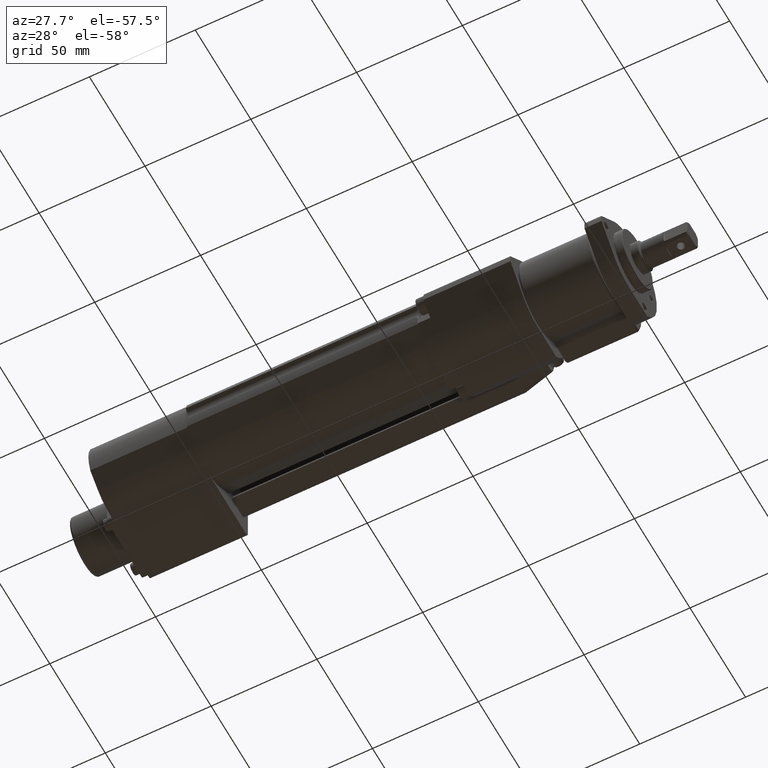
[diagram: clean part render]
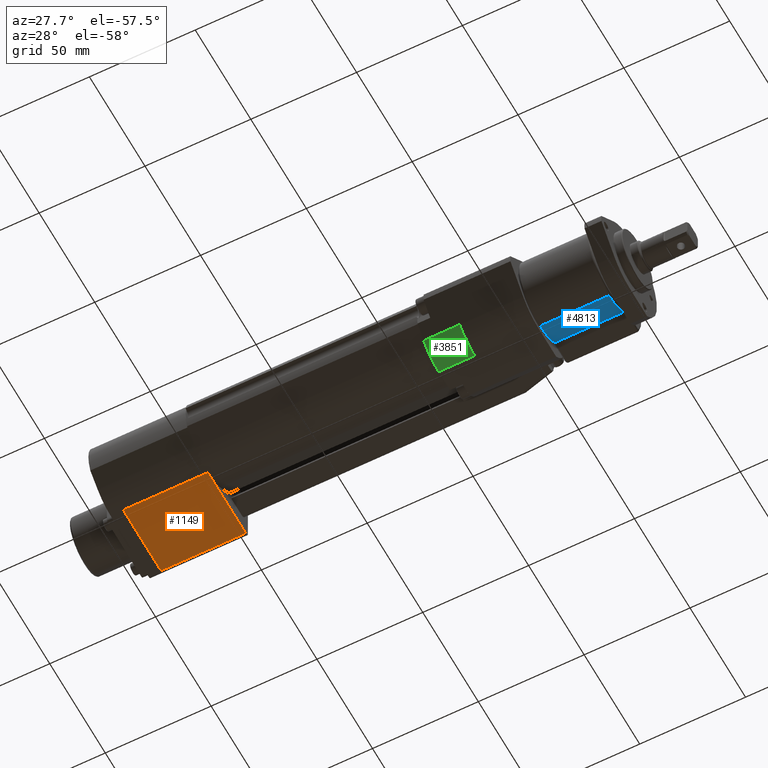
[diagram: same view with three faces highlighted in distinct colors, each labeled with its STEP entity id]
A machine part, auxiliary view with three faces highlighted in distinct colors.
Their STEP definitions:

[orange] entity #1149 — the highlighted planar face has unit normal (0, 0, 1).
#7 = DIRECTION ( 'NONE',  ( 0.0000000000000000000, -1.000000000000000000, 9.637352644315597700E-017 ) ) ;
#166 = CARTESIAN_POINT ( 'NONE',  ( -239.0000000000000300, 36.00000000000000000, -18.00000000000001100 ) ) ;
#334 = DIRECTION ( 'NONE',  ( 0.0000000000000000000, -1.000000000000000000, 9.637352644315597700E-017 ) ) ;
#586 = VECTOR ( 'NONE', #8657, 1000.000000000000000 ) ;
#904 = DIRECTION ( 'NONE',  ( 0.0000000000000000000, -1.000000000000000000, 9.637352644315597700E-017 ) ) ;
#1002 = LINE ( 'NONE', #8552, #5198 ) ;
#1059 = LINE ( 'NONE', #8693, #586 ) ;
#1149 = ADVANCED_FACE ( 'NONE', ( #8140 ), #5508, .F. ) ;
#1251 = EDGE_CURVE ( 'NONE', #1383, #1437, #7692, .T. ) ;
#1383 = VERTEX_POINT ( 'NONE', #4345 ) ;
#1433 = CARTESIAN_POINT ( 'NONE',  ( -239.0000000000000300, 1.019797001576636400E-014, -18.00000000000000400 ) ) ;
#1437 = VERTEX_POINT ( 'NONE', #1433 ) ;
#1499 = CARTESIAN_POINT ( 'NONE',  ( -199.0000000000000000, 33.99999999999999300, -18.00000000000001100 ) ) ;
#1571 = CARTESIAN_POINT ( 'NONE',  ( -199.0000000000000000, 1.019797001576636400E-014, -18.00000000000000400 ) ) ;
#1574 = LINE ( 'NONE', #4501, #9306 ) ;
#1738 = VECTOR ( 'NONE', #904, 1000.000000000000000 ) ;
#2209 = VERTEX_POINT ( 'NONE', #1499 ) ;
#2741 = EDGE_CURVE ( 'NONE', #1383, #2209, #1002, .T. ) ;
#3361 = EDGE_CURVE ( 'NONE', #2209, #4240, #1574, .T. ) ;
#4240 = VERTEX_POINT ( 'NONE', #1571 ) ;
#4345 = CARTESIAN_POINT ( 'NONE',  ( -239.0000000000000300, 33.99999999999999300, -18.00000000000001100 ) ) ;
#4501 = CARTESIAN_POINT ( 'NONE',  ( -199.0000000000000000, 36.00000000000000000, -18.00000000000001100 ) ) ;
#4819 = DIRECTION ( 'NONE',  ( 0.0000000000000000000, 9.637352644315597700E-017, 1.000000000000000000 ) ) ;
#5198 = VECTOR ( 'NONE', #9324, 1000.000000000000000 ) ;
#5508 = PLANE ( 'NONE',  #7308 ) ;
#5582 = EDGE_LOOP ( 'NONE', ( #7578, #9037, #8270, #6561 ) ) ;
#6500 = EDGE_CURVE ( 'NONE', #1437, #4240, #1059, .T. ) ;
#6561 = ORIENTED_EDGE ( 'NONE', *, *, #6500, .F. ) ;
#7308 = AXIS2_PLACEMENT_3D ( 'NONE', #9292, #4819, #334 ) ;
#7578 = ORIENTED_EDGE ( 'NONE', *, *, #1251, .F. ) ;
#7692 = LINE ( 'NONE', #166, #1738 ) ;
#8140 = FACE_OUTER_BOUND ( 'NONE', #5582, .T. ) ;
#8270 = ORIENTED_EDGE ( 'NONE', *, *, #3361, .T. ) ;
#8552 = CARTESIAN_POINT ( 'NONE',  ( -239.0000000000000300, 33.99999999999999300, -18.00000000000001100 ) ) ;
#8657 = DIRECTION ( 'NONE',  ( 1.000000000000000000, -0.0000000000000000000, -0.0000000000000000000 ) ) ;
#8693 = CARTESIAN_POINT ( 'NONE',  ( -239.0000000000000300, 1.019797001576636400E-014, -18.00000000000000400 ) ) ;
#9037 = ORIENTED_EDGE ( 'NONE', *, *, #2741, .T. ) ;
#9292 = CARTESIAN_POINT ( 'NONE',  ( -239.0000000000000300, 36.00000000000000000, -18.00000000000001100 ) ) ;
#9306 = VECTOR ( 'NONE', #7, 1000.000000000000000 ) ;
#9324 = DIRECTION ( 'NONE',  ( 1.000000000000000000, 0.0000000000000000000, -0.0000000000000000000 ) ) ;

[blue] entity #4813 — the highlighted cylindrical surface (partial cylindrical patch) has radius 18.5 mm, axis along (1, -0, -0).
#10 = CARTESIAN_POINT ( 'NONE',  ( -9.500000000000001800, 0.0000000000000000000, 0.0000000000000000000 ) ) ;
#185 = CARTESIAN_POINT ( 'NONE',  ( -9.500000000000001800, 0.0000000000000000000, -18.49999999999999600 ) ) ;
#764 = DIRECTION ( 'NONE',  ( 0.0000000000000000000, 0.0000000000000000000, 1.000000000000000000 ) ) ;
#1128 = CIRCLE ( 'NONE', #8905, 18.49999999999999600 ) ;
#1710 = CARTESIAN_POINT ( 'NONE',  ( -43.00000000000000000, 0.0000000000000000000, -18.49999999999999600 ) ) ;
#1891 = ORIENTED_EDGE ( 'NONE', *, *, #7987, .T. ) ;
#1911 = DIRECTION ( 'NONE',  ( 1.000000000000000000, -0.0000000000000000000, -0.0000000000000000000 ) ) ;
#1973 = EDGE_CURVE ( 'NONE', #4396, #3317, #9550, .T. ) ;
#2810 = CARTESIAN_POINT ( 'NONE',  ( -42.00000000000000000, 0.0000000000000000000, 0.0000000000000000000 ) ) ;
#3304 = EDGE_LOOP ( 'NONE', ( #6775, #8776, #9174, #1891 ) ) ;
#3317 = VERTEX_POINT ( 'NONE', #7438 ) ;
#3550 = DIRECTION ( 'NONE',  ( 0.0000000000000000000, 0.0000000000000000000, 1.000000000000000000 ) ) ;
#3580 = VECTOR ( 'NONE', #5712, 1000.000000000000000 ) ;
#3895 = AXIS2_PLACEMENT_3D ( 'NONE', #2810, #8024, #3550 ) ;
#3915 = EDGE_CURVE ( 'NONE', #7582, #6545, #6815, .T. ) ;
#4396 = VERTEX_POINT ( 'NONE', #8450 ) ;
#4505 = CIRCLE ( 'NONE', #3895, 18.49999999999999600 ) ;
#4727 = CYLINDRICAL_SURFACE ( 'NONE', #5662, 18.49999999999999600 ) ;
#4813 = ADVANCED_FACE ( 'NONE', ( #4969 ), #4727, .T. ) ;
#4969 = FACE_OUTER_BOUND ( 'NONE', #3304, .T. ) ;
#5233 = DIRECTION ( 'NONE',  ( -1.000000000000000000, 0.0000000000000000000, 0.0000000000000000000 ) ) ;
#5529 = VECTOR ( 'NONE', #7647, 1000.000000000000000 ) ;
#5662 = AXIS2_PLACEMENT_3D ( 'NONE', #6385, #1911, #7136 ) ;
#5712 = DIRECTION ( 'NONE',  ( 1.000000000000000000, -0.0000000000000000000, -0.0000000000000000000 ) ) ;
#6385 = CARTESIAN_POINT ( 'NONE',  ( -43.00000000000000000, 0.0000000000000000000, 0.0000000000000000000 ) ) ;
#6484 = CARTESIAN_POINT ( 'NONE',  ( -43.00000000000000000, 13.25572037069669700, -12.90487804878048900 ) ) ;
#6545 = VERTEX_POINT ( 'NONE', #185 ) ;
#6775 = ORIENTED_EDGE ( 'NONE', *, *, #3915, .F. ) ;
#6815 = LINE ( 'NONE', #1710, #5529 ) ;
#7065 = CARTESIAN_POINT ( 'NONE',  ( -42.00000000000000000, 0.0000000000000000000, -18.49999999999999600 ) ) ;
#7136 = DIRECTION ( 'NONE',  ( 0.0000000000000000000, 0.0000000000000000000, -1.000000000000000000 ) ) ;
#7438 = CARTESIAN_POINT ( 'NONE',  ( -9.500000000000001800, 13.25572037069669700, -12.90487804878048900 ) ) ;
#7582 = VERTEX_POINT ( 'NONE', #7065 ) ;
#7647 = DIRECTION ( 'NONE',  ( 1.000000000000000000, -0.0000000000000000000, -0.0000000000000000000 ) ) ;
#7830 = EDGE_CURVE ( 'NONE', #7582, #4396, #4505, .T. ) ;
#7987 = EDGE_CURVE ( 'NONE', #3317, #6545, #1128, .T. ) ;
#8024 = DIRECTION ( 'NONE',  ( 1.000000000000000000, -0.0000000000000000000, -0.0000000000000000000 ) ) ;
#8450 = CARTESIAN_POINT ( 'NONE',  ( -42.00000000000000000, 13.25572037069669700, -12.90487804878048900 ) ) ;
#8776 = ORIENTED_EDGE ( 'NONE', *, *, #7830, .T. ) ;
#8905 = AXIS2_PLACEMENT_3D ( 'NONE', #10, #5233, #764 ) ;
#9174 = ORIENTED_EDGE ( 'NONE', *, *, #1973, .T. ) ;
#9550 = LINE ( 'NONE', #6484, #3580 ) ;

[green] entity #3851 — the highlighted cylindrical surface (partial cylindrical patch) has radius 19 mm, axis along (1, -0, -0).
#103 = LINE ( 'NONE', #3940, #8054 ) ;
#398 = DIRECTION ( 'NONE',  ( 0.0000000000000000000, 0.0000000000000000000, 1.000000000000000000 ) ) ;
#414 = AXIS2_PLACEMENT_3D ( 'NONE', #9351, #4891, #398 ) ;
#1106 = CYLINDRICAL_SURFACE ( 'NONE', #6980, 19.00000000000000400 ) ;
#1289 = ORIENTED_EDGE ( 'NONE', *, *, #8424, .T. ) ;
#1330 = ORIENTED_EDGE ( 'NONE', *, *, #4433, .T. ) ;
#1347 = VERTEX_POINT ( 'NONE', #9348 ) ;
#1360 = VERTEX_POINT ( 'NONE', #3548 ) ;
#1772 = CARTESIAN_POINT ( 'NONE',  ( -90.00000000000001400, -2.664389077618542200E-015, -19.00000000000000000 ) ) ;
#2506 = DIRECTION ( 'NONE',  ( -1.000000000000000000, 0.0000000000000000000, 0.0000000000000000000 ) ) ;
#2554 = DIRECTION ( 'NONE',  ( 1.000000000000000000, -0.0000000000000000000, -0.0000000000000000000 ) ) ;
#2756 = ORIENTED_EDGE ( 'NONE', *, *, #6570, .F. ) ;
#3318 = FACE_OUTER_BOUND ( 'NONE', #5297, .T. ) ;
#3432 = VERTEX_POINT ( 'NONE', #5299 ) ;
#3548 = CARTESIAN_POINT ( 'NONE',  ( -90.00000000000001400, -13.43502884254452900, -13.43502884254428100 ) ) ;
#3639 = CIRCLE ( 'NONE', #414, 19.00000000000000400 ) ;
#3759 = CARTESIAN_POINT ( 'NONE',  ( -73.00000000000001400, -2.664389077618542200E-015, -19.00000000000000000 ) ) ;
#3851 = ADVANCED_FACE ( 'NONE', ( #3318 ), #1106, .T. ) ;
#3940 = CARTESIAN_POINT ( 'NONE',  ( -90.00000000000001400, -13.43502884254452900, -13.43502884254428100 ) ) ;
#4137 = LINE ( 'NONE', #1772, #5854 ) ;
#4433 = EDGE_CURVE ( 'NONE', #3432, #5342, #4137, .T. ) ;
#4497 = EDGE_CURVE ( 'NONE', #3432, #1360, #3639, .T. ) ;
#4613 = CARTESIAN_POINT ( 'NONE',  ( -90.00000000000001400, 0.0000000000000000000, 0.0000000000000000000 ) ) ;
#4696 = ORIENTED_EDGE ( 'NONE', *, *, #4497, .F. ) ;
#4891 = DIRECTION ( 'NONE',  ( -1.000000000000000000, 0.0000000000000000000, 0.0000000000000000000 ) ) ;
#5297 = EDGE_LOOP ( 'NONE', ( #1289, #2756, #4696, #1330 ) ) ;
#5299 = CARTESIAN_POINT ( 'NONE',  ( -90.00000000000001400, -2.664389077618542200E-015, -19.00000000000000000 ) ) ;
#5342 = VERTEX_POINT ( 'NONE', #3759 ) ;
#5435 = DIRECTION ( 'NONE',  ( 1.000000000000000000, -0.0000000000000000000, -0.0000000000000000000 ) ) ;
#5775 = CIRCLE ( 'NONE', #6540, 19.00000000000000400 ) ;
#5854 = VECTOR ( 'NONE', #2554, 1000.000000000000000 ) ;
#6101 = DIRECTION ( 'NONE',  ( 1.000000000000000000, -0.0000000000000000000, -0.0000000000000000000 ) ) ;
#6540 = AXIS2_PLACEMENT_3D ( 'NONE', #6983, #2506, #7720 ) ;
#6570 = EDGE_CURVE ( 'NONE', #1360, #1347, #103, .T. ) ;
#6866 = DIRECTION ( 'NONE',  ( 0.0000000000000000000, 0.0000000000000000000, -1.000000000000000000 ) ) ;
#6980 = AXIS2_PLACEMENT_3D ( 'NONE', #4613, #6101, #6866 ) ;
#6983 = CARTESIAN_POINT ( 'NONE',  ( -73.00000000000001400, 0.0000000000000000000, 0.0000000000000000000 ) ) ;
#7720 = DIRECTION ( 'NONE',  ( 0.0000000000000000000, 0.0000000000000000000, 1.000000000000000000 ) ) ;
#8054 = VECTOR ( 'NONE', #5435, 1000.000000000000000 ) ;
#8424 = EDGE_CURVE ( 'NONE', #5342, #1347, #5775, .T. ) ;
#9348 = CARTESIAN_POINT ( 'NONE',  ( -73.00000000000001400, -13.43502884254452900, -13.43502884254428100 ) ) ;
#9351 = CARTESIAN_POINT ( 'NONE',  ( -90.00000000000001400, 0.0000000000000000000, 0.0000000000000000000 ) ) ;